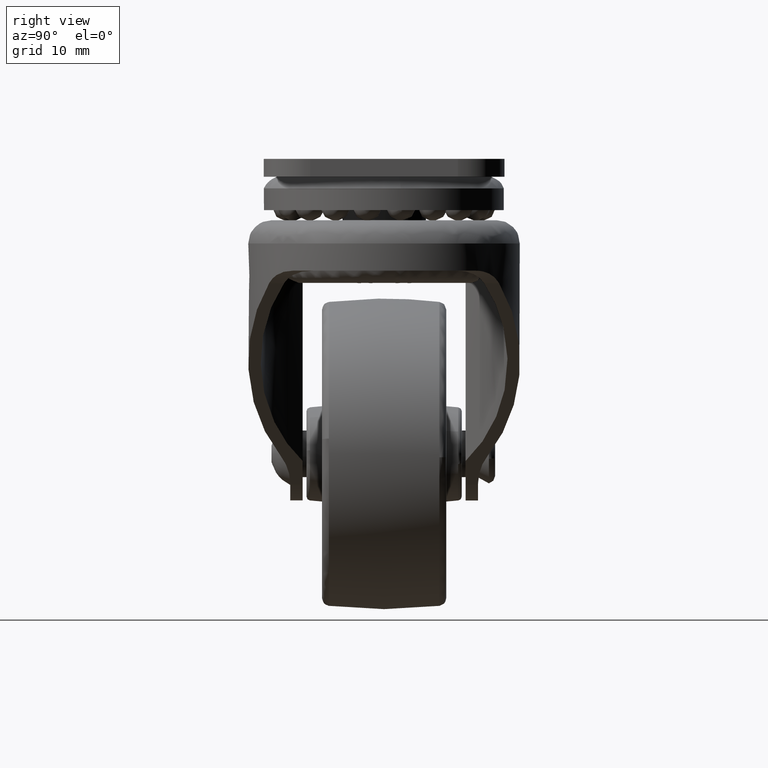
[diagram: clean part render]
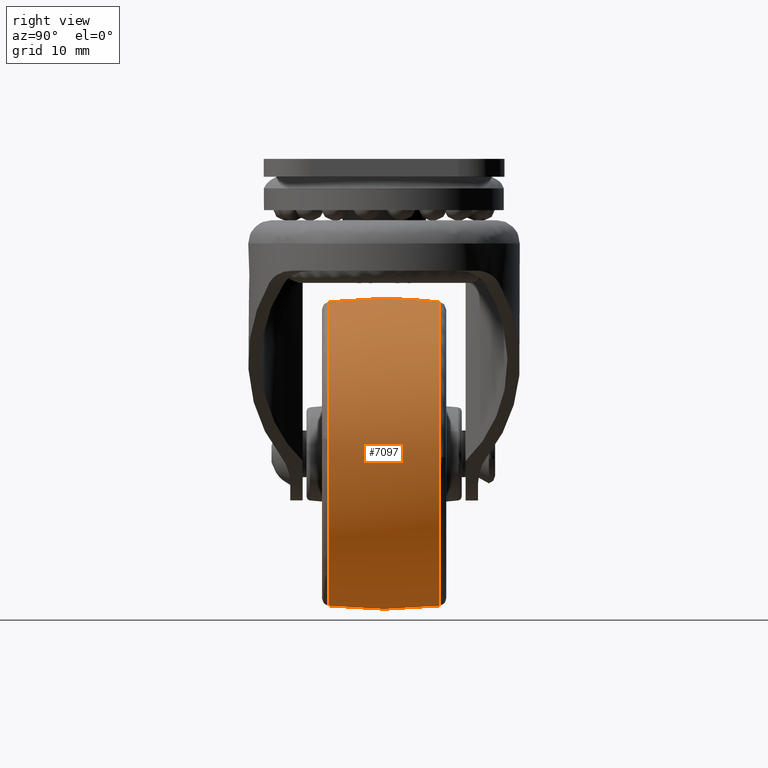
[diagram: same view with one face highlighted and labeled with its STEP entity id]
A machine part, right view. The second image highlights one B-rep face of the part: STEP entity #7097.
In plain terms, the highlighted face is a freeform B-spline surface patch.
Its self-contained STEP definition (entity closure, byte-faithful):
#6465=CARTESIAN_POINT('',(0.0,7.118643738764131,19.576210951356710));
#6466=VERTEX_POINT('',#6465);
#6480=CARTESIAN_POINT('',(19.571252960442209,7.118644011443535,-0.440578968768423));
#6481=VERTEX_POINT('',#6480);
#6482=CARTESIAN_POINT('',(19.571252960442202,7.118644011443535,-0.440578968768423));
#6483=CARTESIAN_POINT('',(19.576210925447150,7.118643955602270,-0.220317381106158));
#6484=CARTESIAN_POINT('',(19.576210925447150,7.118643955602270,1.181745E-015));
#6485=CARTESIAN_POINT('',(19.576210925447150,7.118643955602271,19.576210925447150));
#6486=CARTESIAN_POINT('',(0.0,7.118643738764131,19.576210951356710));
#6494=(BOUNDED_CURVE()B_SPLINE_CURVE(2,(#6482,#6483,#6484,#6485,#6486),.UNSPECIFIED.,.F.,.U.)B_SPLINE_CURVE_WITH_KNOTS((3,2,3),(0.246039451969112,0.250000000000000,0.500000000000000),.UNSPECIFIED.)CURVE()GEOMETRIC_REPRESENTATION_ITEM()RATIONAL_B_SPLINE_CURVE((0.990866876492965,0.995359929355871,1.0,0.707106781186548,1.0))REPRESENTATION_ITEM(''));
#6495=EDGE_CURVE('',#6481,#6466,#6494,.T.);
#6558=CARTESIAN_POINT('',(0.0,7.118643955602270,-19.576210925447150));
#6559=VERTEX_POINT('',#6558);
#6560=CARTESIAN_POINT('',(0.0,7.118643955602270,-19.576210925447150));
#6561=CARTESIAN_POINT('',(19.140480027959573,7.118643955602270,-19.576210925447153));
#6562=CARTESIAN_POINT('',(19.571252960442202,7.118644011443535,-0.440578968768423));
#6570=(BOUNDED_CURVE()B_SPLINE_CURVE(2,(#6560,#6561,#6562),.UNSPECIFIED.,.F.,.U.)B_SPLINE_CURVE_WITH_KNOTS((3,3),(0.0,0.246039451969112),.UNSPECIFIED.)CURVE()GEOMETRIC_REPRESENTATION_ITEM()RATIONAL_B_SPLINE_CURVE((1.0,0.711746851830676,0.990866876492965))REPRESENTATION_ITEM(''));
#6571=EDGE_CURVE('',#6559,#6481,#6570,.T.);
#6573=CARTESIAN_POINT('',(-19.445279401510842,7.118649067782592,2.260336098562421));
#6574=VERTEX_POINT('',#6573);
#6575=CARTESIAN_POINT('',(-19.445279401510842,7.118649067782592,2.260336098562421));
#6576=CARTESIAN_POINT('',(-19.576210334330465,7.118648935933976,1.133960129880808));
#6577=CARTESIAN_POINT('',(-19.576210351904042,7.118648787871385,-0.000000066669152));
#6578=CARTESIAN_POINT('',(-19.576210655286964,7.118646231781224,-19.576210956850808));
#6579=CARTESIAN_POINT('',(0.0,7.118643955602270,-19.576210925447150));
#6587=(BOUNDED_CURVE()B_SPLINE_CURVE(2,(#6575,#6576,#6577,#6578,#6579),.UNSPECIFIED.,.F.,.U.)B_SPLINE_CURVE_WITH_KNOTS((3,2,3),(0.730000138650092,0.750000000000000,1.0),.UNSPECIFIED.)CURVE()GEOMETRIC_REPRESENTATION_ITEM()RATIONAL_B_SPLINE_CURVE((0.956886391087834,0.976568704933611,1.0,0.707106781186548,1.0))REPRESENTATION_ITEM(''));
#6588=EDGE_CURVE('',#6574,#6559,#6587,.T.);
#6639=CARTESIAN_POINT('',(5.334080428898447,-7.118643946182971,-18.835489279828519));
#6640=VERTEX_POINT('',#6639);
#6641=CARTESIAN_POINT('',(19.477372109789901,-7.118640550551096,1.964702213886228));
#6642=VERTEX_POINT('',#6641);
#6643=CARTESIAN_POINT('',(5.334080428898445,-7.118643946182971,-18.835489279828511));
#6644=CARTESIAN_POINT('',(19.576211848757545,-7.118643281574909,-14.802215995903410));
#6645=CARTESIAN_POINT('',(19.576211848757548,-7.118640849619541,0.000000267247894));
#6646=CARTESIAN_POINT('',(19.576211848757541,-7.118640687814037,0.984837443208896));
#6647=CARTESIAN_POINT('',(19.477372109789901,-7.118640550551096,1.964702213886228));
#6655=(BOUNDED_CURVE()B_SPLINE_CURVE(2,(#6643,#6644,#6645,#6646,#6647),.UNSPECIFIED.,.F.,.U.)B_SPLINE_CURVE_WITH_KNOTS((3,2,3),(0.046426116433993,0.250000000000000,0.267423438541048),.UNSPECIFIED.)CURVE()GEOMETRIC_REPRESENTATION_ITEM()RATIONAL_B_SPLINE_CURVE((0.911418360697634,0.761498359903989,1.0,0.979587172011657,0.962019637254545))REPRESENTATION_ITEM(''));
#6656=EDGE_CURVE('',#6640,#6642,#6655,.T.);
#6741=CARTESIAN_POINT('',(0.0,-7.118644065926700,-19.576211848757548));
#6742=VERTEX_POINT('',#6741);
#6743=CARTESIAN_POINT('',(0.0,-7.118644065926700,-19.576211848757548));
#6744=CARTESIAN_POINT('',(2.718470814018492,-7.118644065926700,-19.576211848757552));
#6745=CARTESIAN_POINT('',(5.334080428898445,-7.118643946182971,-18.835489279828511));
#6753=(BOUNDED_CURVE()B_SPLINE_CURVE(2,(#6743,#6744,#6745),.UNSPECIFIED.,.F.,.U.)B_SPLINE_CURVE_WITH_KNOTS((3,3),(0.0,0.046426116433993),.UNSPECIFIED.)CURVE()GEOMETRIC_REPRESENTATION_ITEM()RATIONAL_B_SPLINE_CURVE((1.0,0.945608421282558,0.911418360697634))REPRESENTATION_ITEM(''));
#6754=EDGE_CURVE('',#6742,#6640,#6753,.T.);
#6803=CARTESIAN_POINT('',(0.0,-7.118637633312382,19.576212383253338));
#6804=VERTEX_POINT('',#6803);
#6805=CARTESIAN_POINT('',(19.477372109789901,-7.118640550551096,1.964702213886228));
#6806=CARTESIAN_POINT('',(17.700881371272875,-7.118637633312382,19.576212383253338));
#6807=CARTESIAN_POINT('',(0.0,-7.118637633312382,19.576212383253338));
#6815=(BOUNDED_CURVE()B_SPLINE_CURVE(2,(#6805,#6806,#6807),.UNSPECIFIED.,.F.,.U.)B_SPLINE_CURVE_WITH_KNOTS((3,3),(0.267423438541047,0.500000000000000),.UNSPECIFIED.)CURVE()GEOMETRIC_REPRESENTATION_ITEM()RATIONAL_B_SPLINE_CURVE((0.962019637254545,0.727519609174890,1.0))REPRESENTATION_ITEM(''));
#6816=EDGE_CURVE('',#6642,#6804,#6815,.T.);
#6818=CARTESIAN_POINT('',(-19.445281321579230,-7.118636615236500,2.260336522504607));
#6819=VERTEX_POINT('',#6818);
#6833=CARTESIAN_POINT('',(-19.445281321579234,-7.118636615236500,2.260336522504607));
#6834=CARTESIAN_POINT('',(-19.576212257138096,-7.118636807397811,1.133960399585470));
#6835=CARTESIAN_POINT('',(-19.576212244997159,-7.118637023190003,0.000000046059242));
#6836=CARTESIAN_POINT('',(-19.576212035401181,-7.118640748535102,-19.576211827061929));
#6837=CARTESIAN_POINT('',(0.0,-7.118644065926700,-19.576211848757548));
#6845=(BOUNDED_CURVE()B_SPLINE_CURVE(2,(#6833,#6834,#6835,#6836,#6837),.UNSPECIFIED.,.F.,.U.)B_SPLINE_CURVE_WITH_KNOTS((3,2,3),(0.730000136927027,0.750000000000000,1.0),.UNSPECIFIED.)CURVE()GEOMETRIC_REPRESENTATION_ITEM()RATIONAL_B_SPLINE_CURVE((0.956886387696420,0.976568702914915,1.0,0.707106781186547,1.0))REPRESENTATION_ITEM(''));
#6846=EDGE_CURVE('',#6819,#6742,#6845,.T.);
#7005=CARTESIAN_POINT('',(-19.356058350995514,-7.833860323427610,2.249980562390552));
#7006=CARTESIAN_POINT('',(-19.866232832661670,-3.933767002046251,2.309284096527579));
#7007=CARTESIAN_POINT('',(-19.866232832661677,0.0,2.309284096527579));
#7008=CARTESIAN_POINT('',(-19.866232832661673,3.933770004354201,2.309284096527578));
#7009=CARTESIAN_POINT('',(-19.356057575583201,7.833866251162727,2.249980472255330));
#7010=CARTESIAN_POINT('',(-19.486390312684350,-7.833860323427608,1.128765073858287));
#7011=CARTESIAN_POINT('',(-19.999999999999996,-3.933767002046250,1.158516334473230));
#7012=CARTESIAN_POINT('',(-19.999999999999993,0.0,1.158516334473230));
#7013=CARTESIAN_POINT('',(-19.999999999999993,3.933770004354201,1.158516334473231));
#7014=CARTESIAN_POINT('',(-19.486389532050890,7.833866251162726,1.128765028639456));
#7015=CARTESIAN_POINT('',(-19.486390312684346,-7.833860323427608,0.0));
#7016=CARTESIAN_POINT('',(-19.999999999999996,-3.933767002046250,0.0));
#7017=CARTESIAN_POINT('',(-20.0,0.0,0.0));
#7018=CARTESIAN_POINT('',(-20.0,3.933770004354200,0.0));
#7019=CARTESIAN_POINT('',(-19.486389532050882,7.833866251162726,0.0));
#7020=CARTESIAN_POINT('',(-19.486390312684346,-7.833860323427607,-19.486390312684346));
#7021=CARTESIAN_POINT('',(-19.999999999999993,-3.933767002046250,-19.999999999999993));
#7022=CARTESIAN_POINT('',(-19.999999999999996,0.0,-19.999999999999996));
#7023=CARTESIAN_POINT('',(-19.999999999999993,3.933770004354201,-19.999999999999993));
#7024=CARTESIAN_POINT('',(-19.486389532050893,7.833866251162726,-19.486389532050893));
#7025=CARTESIAN_POINT('',(0.0,-7.833860323427608,-19.486390312684346));
#7026=CARTESIAN_POINT('',(0.0,-3.933767002046250,-19.999999999999996));
#7027=CARTESIAN_POINT('',(0.0,0.0,-20.0));
#7028=CARTESIAN_POINT('',(0.0,3.933770004354200,-20.0));
#7029=CARTESIAN_POINT('',(0.0,7.833866251162726,-19.486389532050882));
#7030=CARTESIAN_POINT('',(19.486390312684346,-7.833860323427607,-19.486390312684346));
#7031=CARTESIAN_POINT('',(19.999999999999993,-3.933767002046250,-19.999999999999993));
#7032=CARTESIAN_POINT('',(19.999999999999996,0.0,-19.999999999999996));
#7033=CARTESIAN_POINT('',(19.999999999999993,3.933770004354201,-19.999999999999993));
#7034=CARTESIAN_POINT('',(19.486389532050893,7.833866251162726,-19.486389532050893));
#7035=CARTESIAN_POINT('',(19.486390312684346,-7.833860323427608,0.0));
#7036=CARTESIAN_POINT('',(19.999999999999996,-3.933767002046250,0.0));
#7037=CARTESIAN_POINT('',(20.0,0.0,0.0));
#7038=CARTESIAN_POINT('',(20.0,3.933770004354200,0.0));
#7039=CARTESIAN_POINT('',(19.486389532050882,7.833866251162726,0.0));
#7040=CARTESIAN_POINT('',(19.486390312684346,-7.833860323427607,19.486390312684346));
#7041=CARTESIAN_POINT('',(19.999999999999993,-3.933767002046250,19.999999999999993));
#7042=CARTESIAN_POINT('',(19.999999999999996,0.0,19.999999999999996));
#7043=CARTESIAN_POINT('',(19.999999999999993,3.933770004354201,19.999999999999993));
#7044=CARTESIAN_POINT('',(19.486389532050893,7.833866251162726,19.486389532050893));
#7045=CARTESIAN_POINT('',(0.0,-7.833860323427608,19.486390312684346));
#7046=CARTESIAN_POINT('',(0.0,-3.933767002046250,19.999999999999996));
#7047=CARTESIAN_POINT('',(0.0,0.0,20.0));
#7048=CARTESIAN_POINT('',(0.0,3.933770004354200,20.0));
#7049=CARTESIAN_POINT('',(0.0,7.833866251162726,19.486389532050882));
#7057=(BOUNDED_SURFACE()B_SPLINE_SURFACE(2,2,((#7005,#7010,#7015,#7020,#7025,#7030,#7035,#7040,#7045),(#7006,#7011,#7016,#7021,#7026,#7031,#7036,#7041,#7046),(#7007,#7012,#7017,#7022,#7027,#7032,#7037,#7042,#7047),(#7008,#7013,#7018,#7023,#7028,#7033,#7038,#7043,#7048),(#7009,#7014,#7019,#7024,#7029,#7034,#7039,#7044,#7049)),.UNSPECIFIED.,.F.,.F.,.U.)B_SPLINE_SURFACE_WITH_KNOTS((3,2,3),(3,2,2,2,3),(0.0,7.943475924984771,15.886957828885230),(0.0,2.650966246153037,35.788051236000634,68.925136225848220,102.062221215695800),.UNSPECIFIED.)GEOMETRIC_REPRESENTATION_ITEM()RATIONAL_B_SPLINE_SURFACE(((0.934659782483006,0.953885024447107,0.976772216352058,0.690682257857154,0.976772216352058,0.690682257857154,0.976772216352058,0.690682257857154,0.976772216352058),(0.943681637532350,0.963092452203804,0.986200563989681,0.697349106407101,0.986200563989681,0.697349106407101,0.986200563989681,0.697349106407101,0.986200563989681),(0.956886126402807,0.976568547383107,1.0,0.707106781186548,1.0,0.707106781186548,1.0,0.707106781186548,1.0),(0.943681627593562,0.963092442060582,0.986200553603087,0.697349099062670,0.986200553603087,0.697349099062670,0.986200553603087,0.697349099062670,0.986200553603087),(0.934659768901823,0.953885010586569,0.976772202158956,0.690682247821115,0.976772202158956,0.690682247821115,0.976772202158956,0.690682247821115,0.976772202158956)))REPRESENTATION_ITEM('')SURFACE());
#7058=ORIENTED_EDGE('',*,*,#6588,.T.);
#7059=ORIENTED_EDGE('',*,*,#6571,.T.);
#7060=ORIENTED_EDGE('',*,*,#6495,.T.);
#7061=CARTESIAN_POINT('',(0.0,-7.118637633312382,19.576212383253338));
#7062=CARTESIAN_POINT('',(0.0,-3.571933305084910,20.0));
#7063=CARTESIAN_POINT('',(0.0,0.0,20.0));
#7064=CARTESIAN_POINT('',(0.0,3.571936322658401,19.999999999999996));
#7065=CARTESIAN_POINT('',(0.0,7.118643738764131,19.576210951356707));
#7073=(BOUNDED_CURVE()B_SPLINE_CURVE(2,(#7061,#7062,#7063,#7064,#7065),.UNSPECIFIED.,.F.,.U.)B_SPLINE_CURVE_WITH_KNOTS((3,2,3),(0.428002972928681,0.500000000000000,0.571997087131401),.UNSPECIFIED.)CURVE()GEOMETRIC_REPRESENTATION_ITEM()RATIONAL_B_SPLINE_CURVE((0.978520982147090,0.987453931858267,1.0,0.987453921392309,0.978520967243319))REPRESENTATION_ITEM(''));
#7074=EDGE_CURVE('',#6804,#6466,#7073,.T.);
#7075=ORIENTED_EDGE('',*,*,#7074,.F.);
#7076=ORIENTED_EDGE('',*,*,#6816,.F.);
#7077=ORIENTED_EDGE('',*,*,#6656,.F.);
#7078=ORIENTED_EDGE('',*,*,#6754,.F.);
#7079=ORIENTED_EDGE('',*,*,#6846,.F.);
#7080=CARTESIAN_POINT('',(-19.445281321579234,-7.118636615236500,2.260336522504608));
#7081=CARTESIAN_POINT('',(-19.866234955456697,-3.571932845967453,2.309268836740242));
#7082=CARTESIAN_POINT('',(-19.866234846185112,-0.000000027581139,2.309268773672957));
#7083=CARTESIAN_POINT('',(-19.866234736913331,3.571939111467367,2.309268710605561));
#7084=CARTESIAN_POINT('',(-19.445279401510835,7.118649067782592,2.260336098562422));
#7092=(BOUNDED_CURVE()B_SPLINE_CURVE(2,(#7080,#7081,#7082,#7083,#7084),.UNSPECIFIED.,.F.,.U.)B_SPLINE_CURVE_WITH_KNOTS((3,2,3),(0.428002982891092,0.500000000000000,0.571997142911804),.UNSPECIFIED.)CURVE()GEOMETRIC_REPRESENTATION_ITEM()RATIONAL_B_SPLINE_CURVE((0.936333146540407,0.944880961409146,0.956886118190660,0.944880940432117,0.936333116668628))REPRESENTATION_ITEM(''));
#7093=EDGE_CURVE('',#6819,#6574,#7092,.T.);
#7094=ORIENTED_EDGE('',*,*,#7093,.T.);
#7095=EDGE_LOOP('',(#7058,#7059,#7060,#7075,#7076,#7077,#7078,#7079,#7094));
#7096=FACE_OUTER_BOUND('',#7095,.T.);
#7097=ADVANCED_FACE('',(#7096),#7057,.T.);